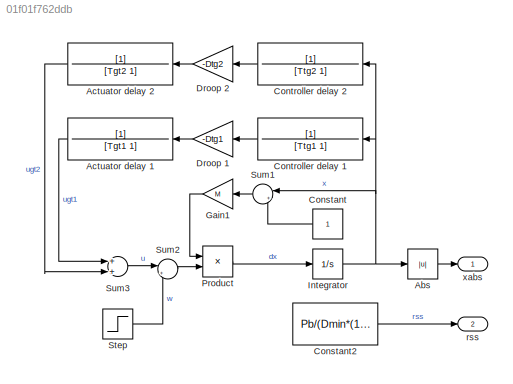
MODEL slx_01f01f762ddb
KIND model
CONFIG AbsTol = auto
CONFIG EnableMultiTasking = off
CONFIG FixedStep = Ts
CONFIG MaxStep = auto
CONFIG MinStep = auto
CONFIG RelTol = 1e-3
CONFIG SampleTimeConstraint = Unconstrained
CONFIG Solver = ode4
CONFIG SolverName = ode4
CONFIG StartTime = 0.0
CONFIG StopTime = Ttotal
BLOCK [Abs] Abs
  SaturateOnIntegerOverflow = off
BLOCK [TransferFcn] Actuator delay 1
  Denominator = [Tgt1 1]
BLOCK [TransferFcn] Actuator delay 2
  Denominator = [Tgt2 1]
BLOCK [Constant] Constant
BLOCK [Constant] Constant2
  Value = Pb/(Dmin*(1-rtr))
BLOCK [TransferFcn] Controller delay 1
  Denominator = [Ttg1 1]
BLOCK [TransferFcn] Controller delay 2
  Denominator = [Ttg2 1]
BLOCK [Gain] Droop 1
  Gain = -Dtg1
  OutDataTypeStr = Inherit: Inherit via internal rule
  ParamDataTypeStr = Inherit: Inherit via internal rule
  SaturateOnIntegerOverflow = off
BLOCK [Gain] Droop 2
  Gain = -Dtg2
  OutDataTypeStr = Inherit: Inherit via internal rule
  ParamDataTypeStr = Inherit: Inherit via internal rule
  SaturateOnIntegerOverflow = off
BLOCK [Gain] Gain1
  Gain = M
  OutDataTypeStr = Inherit: Inherit via internal rule
  ParamDataTypeStr = Inherit: Inherit via internal rule
  SaturateOnIntegerOverflow = off
BLOCK [Integrator] Integrator
  InitialCondition = x0
  Ports = [1, 1]
BLOCK [Product] Product
  InputSameDT = off
  Inputs = /*
  OutDataTypeStr = Inherit: Inherit via internal rule
  Ports = [2, 1]
  RndMeth = Floor
  SaturateOnIntegerOverflow = off
BLOCK [Step] Step
  After = Pb
  SampleTime = 0
  Time = Tstep
BLOCK [Sum] Sum1
  IconShape = round
  InputSameDT = off
  Inputs = |++
  OutDataTypeStr = Inherit: Inherit via internal rule
  Ports = [2, 1]
  SaturateOnIntegerOverflow = off
BLOCK [Sum] Sum2
  IconShape = round
  InputSameDT = off
  Inputs = |+-
  OutDataTypeStr = Inherit: Inherit via internal rule
  Ports = [2, 1]
  SaturateOnIntegerOverflow = off
BLOCK [Sum] Sum3
  InputSameDT = off
  OutDataTypeStr = Inherit: Inherit via internal rule
  Ports = [2, 1]
  SaturateOnIntegerOverflow = off
BLOCK [Outport] rss
  IconDisplay = Port number
  Port = 2
BLOCK [Outport] xabs
  IconDisplay = Port number
LINE Abs:1 -> xabs:1
LINE Actuator delay 1:1 -> Sum3:1
LINE Actuator delay 2:1 -> Sum3:2
LINE Constant2:1 -> rss:1
LINE Constant:1 -> Sum1:2
LINE Controller delay 1:1 -> Droop 1:1
LINE Controller delay 2:1 -> Droop 2:1
LINE Droop 1:1 -> Actuator delay 1:1
LINE Droop 2:1 -> Actuator delay 2:1
LINE Gain1:1 -> Product:1
NET Integrator:1 -> Abs:1, Controller delay 1:1, Controller delay 2:1, Sum1:1
LINE Product:1 -> Integrator:1
LINE Step:1 -> Sum2:2
LINE Sum1:1 -> Gain1:1
LINE Sum2:1 -> Product:2
LINE Sum3:1 -> Sum2:1
note: NET lines group one-source signal fan-out (src -> all destinations, sorted); 1:1 wires keep LINE
